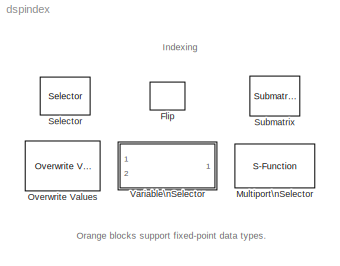
MODEL dspindex
KIND library
BLOCK [S-Function] Flip
  CopyFcn = dspfixptcopycallback
  FunctionName = sdspflip
  MaskDescription = Reverse order of vector elements.  For oriented inputs, reverse the order along the specified dimension.
  MaskDisplay = plot(0,0,100,100,[47 40 40 47],[20 20 90 90],[53 60 60 53],[90 90 20 20],[75 76 81 80 73],[34 24 40 60 90],[83 76],[29 24],[19 30 19 19 26],[86 84 72 50 20],[29 30],[71 84])
  MaskEnableString = on
  MaskHelp = web(dspbhelp);
  MaskIconFrame = on
  MaskIconOpaque = on
  MaskIconRotate = none
  MaskIconUnits = autoscale
  MaskPromptString = Flip along:
  MaskSelfModifiable = on
  MaskStyleString = popup(Rows|Columns)
  MaskToolTipString = on
  MaskTunableValueString = off
  MaskType = Flip
  MaskValueString = Columns
  MaskVariables = dim=@1;
  MaskVisibilityString = on
  Parameters = dim
  Ports = [1, 1]
BLOCK [S-Function] Multiport\nSelector
  CopyFcn = dspfixptcopycallback
  FunctionName = sdspmultiportsel
  MaskCallbackString = ||
  MaskDescription = Output specified rows or columns to one or more output ports.  The number of output ports is determined by the number of index vectors, each specified as a separate vector entry in a cell array.  Indices are 1-based and need not be unique.
  MaskDisplay = disp(['Select\\n' &1]);
  MaskEnableString = on,on,on
  MaskHelp = web(dspbhelp);
  MaskIconFrame = on
  MaskIconOpaque = on
  MaskIconRotate = none
  MaskIconUnits = autoscale
  MaskInitialization = [numOutports, flatLenVect, flatIdxVect] = dspblkmultiportsel(idxCellArray);
  MaskPromptString = Select:|Indices to output:|Invalid index:
  MaskSelfModifiable = on
  MaskStyleString = popup(Rows|Columns),edit,popup(Clip Index|Clip and Warn|Generate Error)
  MaskToolTipString = on,on,on
  MaskTunableValueString = off,off,on
  MaskType = Multiport Selector
  MaskValueString = Rows|{ 4, [1:2 5], [7; 8], 10:-1:6 }|Clip Index
  MaskVarAliasString = ,,
  MaskVariables = rowsOrCols=@1;idxCellArray=@2;idxErrMode=@3;
  MaskVisibilityString = on,on,on
  Parameters = rowsOrCols, numOutports, flatIdxVect, flatLenVect, idxErrMode
  Ports = [1, 4]
BLOCK [Reference] Overwrite Values  REF=dspmtrx3/Overwrite Values
  ColEndIndex = 1
  ColEndMode = Last
  ColSpan = Range of columns
  ColStartIndex = 1
  ColStartMode = First
  ConstValue = 0
  DiagEndIndex = 4
  DiagEndMode = Index
  DiagSpan = Range of elements
  DiagStartIndex = 2
  DiagStartMode = Index
  OverWriteDiag = Submatrix
  Ports = [1, 1]
  RowEndIndex = 1
  RowEndMode = Last
  RowSpan = Range of rows
  RowStartIndex = 1
  RowStartMode = First
  SourceBlock = dspmtrx3/Overwrite Values
  SourceType = Overwrite Values
  valFrom2ndIP = Specify via dialog
BLOCK [Selector] Selector
  CopyFcn = dspfixptcopycallback
  Elements = [1 3]
  InputPortWidth = 3
  Ports = [1, 1]
BLOCK [Reference] Submatrix  REF=dspmtrx3/Submatrix
  ColEndIndex = 1
  ColEndMode = Last
  ColSpan = Range of columns
  ColStartIndex = 1
  ColStartMode = First
  Ports = [1, 1]
  RowEndIndex = 1
  RowEndMode = Last
  RowSpan = Range of rows
  RowStartIndex = 1
  RowStartMode = First
  SourceBlock = dspmtrx3/Submatrix
  SourceType = Submatrix
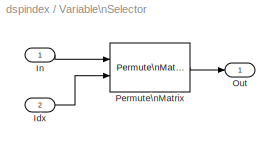
BLOCK [SubSystem] Variable\nSelector
  CopyFcn = dspfixptcopycallback
  MaskCallbackString = dspblkvarsel2|dspblkvarsel2||dspblkvarsel2|
  MaskDescription = Selects and/or reorders the rows or columns of the input according to a specified vector of indices (the indices need not be unique). The 'Selector mode' parameter determines whether the block uses the same indices for every input ('Fixed'), or uses different indices for every input ('Variable'). When set to 'Variable', you provide the vector of indices through an input port.
  MaskDisplay = disp(['Select\\n' &1]);
  MaskEnableString = on,on,off,on,on
  MaskHelp = web(dspbhelp);
  MaskIconFrame = on
  MaskIconOpaque = off
  MaskIconRotate = none
  MaskIconUnits = autoscale
  MaskInitialization = dspblkvarsel2('init');\n
  MaskPromptString = Select:|Selector mode:|Elements:|Index mode:|Invalid index:
  MaskSelfModifiable = on
  MaskStyleString = popup(Rows|Columns),popup(Fixed|Variable),edit,popup(Zero-based|One-based),popup(Clip Index|Clip and Warn|Generate Error)
  MaskToolTipString = on,on,on,on,on
  MaskTunableValueString = off,off,on,off,on
  MaskType = Variable Selector
  MaskValueString = Rows|Variable|[1 3]|One-based|Clip Index
  MaskVarAliasString = ,,,,
  MaskVariables = rowsOrCols=@1;IdxMode=@2;Elements=@3;ZerOneIdxMode=@4;errmode=@5;
  MaskVisibilityString = on,on,on,on,on
  Ports = [2, 1]
  TreatAsAtomicUnit = off
BLOCK [Inport] Variable\nSelector/Idx
  Port = 2
BLOCK [Inport] Variable\nSelector/In
BLOCK [Outport] Variable\nSelector/Out
BLOCK [Reference] Variable\nSelector/Permute\nMatrix  REF=dspmtrx3/Permute\nMatrix
  Ports = [2, 1]
  SourceBlock = dspmtrx3/Permute\nMatrix
  SourceType = Permute Matrix
  ZeroOneIdxMode = One-based
  checkDims = off
  errmode = Clip Index
  mode = Rows
ANNOTATION (root): Indexing
ANNOTATION (root): Orange blocks support fixed-point data types.
LINE Variable\nSelector/Idx:1 -> Variable\nSelector/Permute\nMatrix:2
LINE Variable\nSelector/In:1 -> Variable\nSelector/Permute\nMatrix:1
LINE Variable\nSelector/Permute\nMatrix:1 -> Variable\nSelector/Out:1
